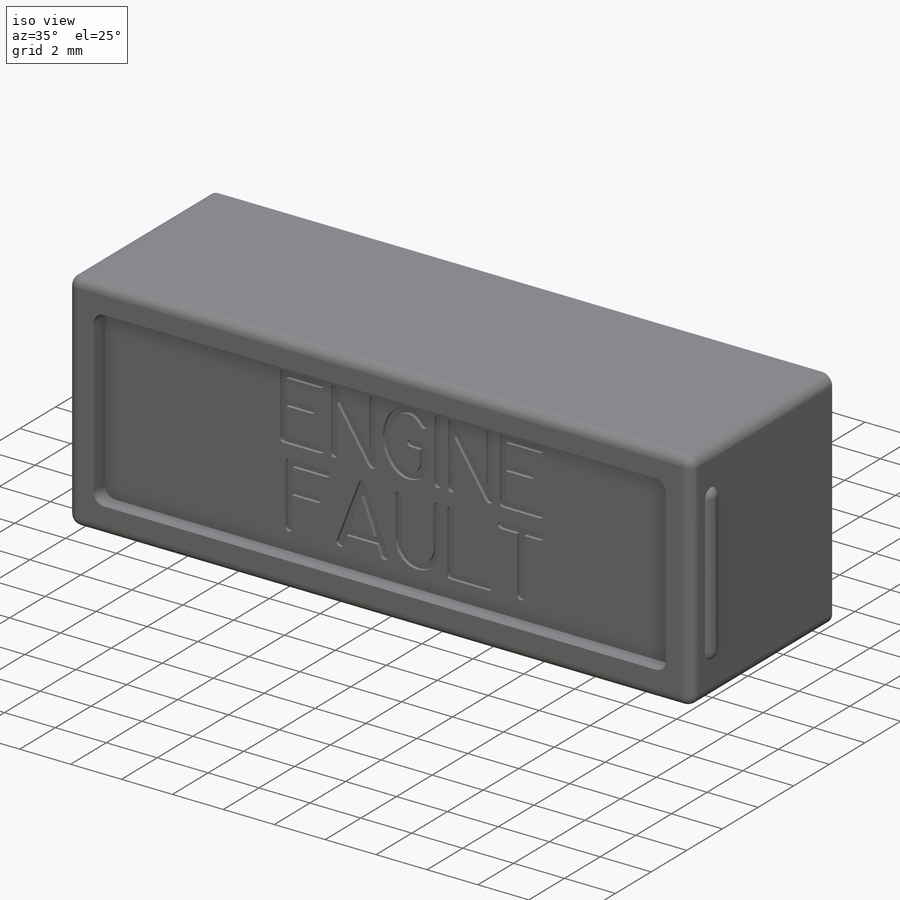
[diagram: iso view]
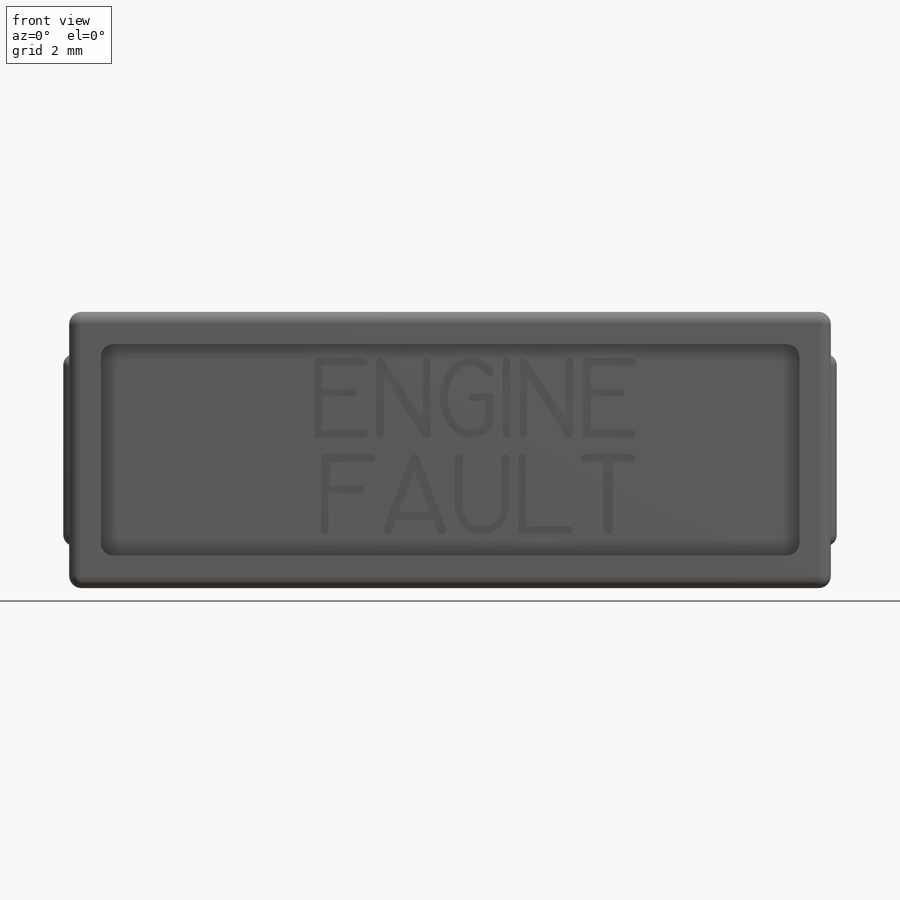
[diagram: front view]
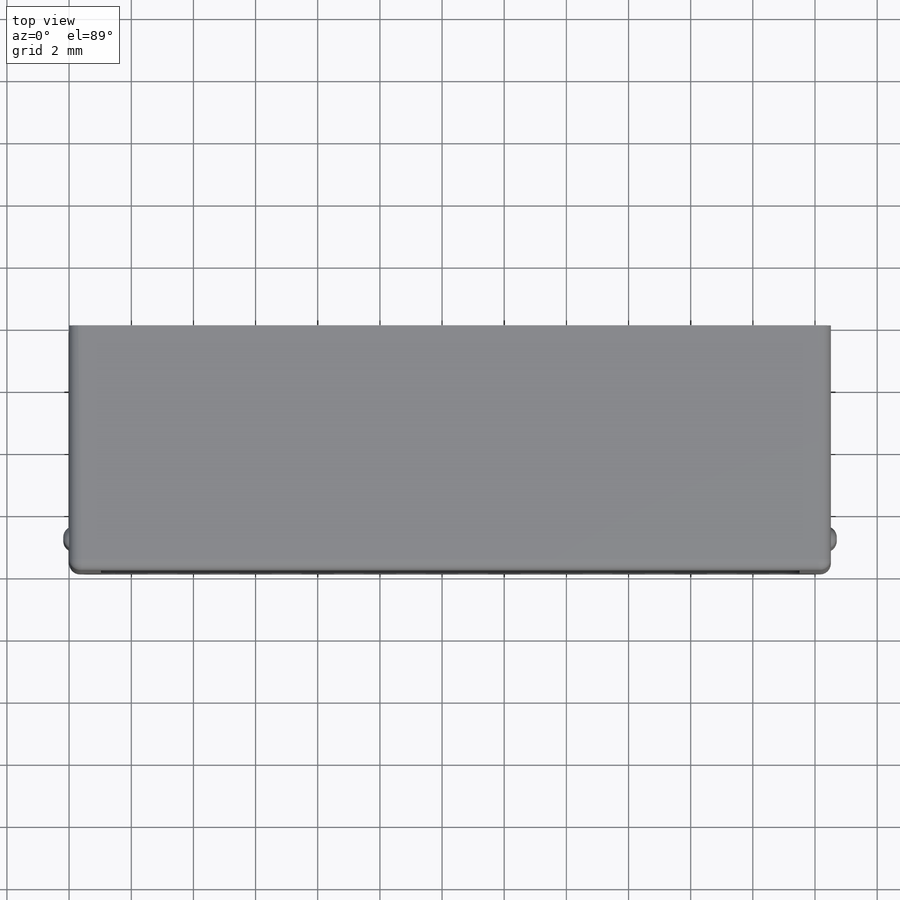
[diagram: top view]
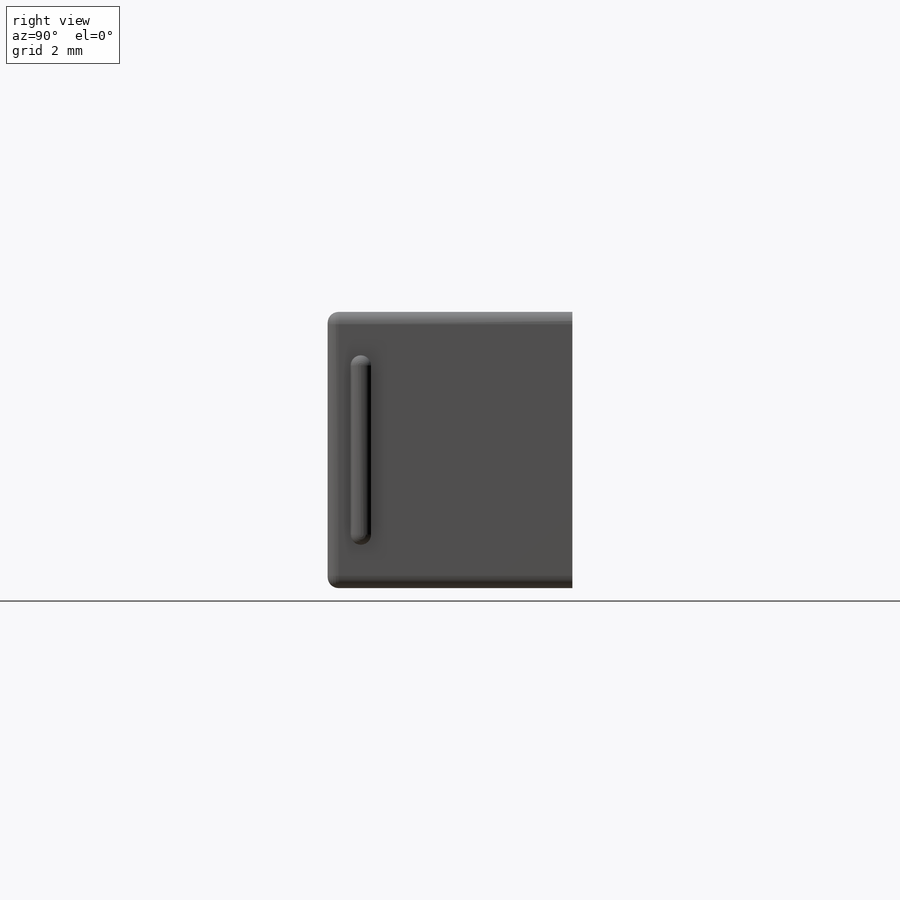
[diagram: right view]
SOLIDWORKS PART (.sldprt)
format: sldprt  version: not decoded by parser v0  size: 1,524,224 bytes
history: native  units: mm
features: sketch x7, extrude x3, fillet x3, material x1, cut_extrude x1 (+16 scaffold rows collapsed)
feature tree (31):
  scaffold x16  (default folders/planes/origin — collapsed)
  material  "Material <not specified>"
  sketch  "Sketch1"  dims[D1=24.511mm D2=8.89mm]
  extrude  "Extrude1"  Depth=7.874mm
  sketch  "Sketch2"  dims[D1=6.7945mm D2=22.479mm]
  cut_extrude  "Extrude2"  Depth=0.635mm
  fillet  "Fillet2"  Radius=0.396875mm
  fillet  "Fillet3"  Radius=0.352778mm
  sketch  "Sketch3"  dims[c1.D1=0.6604mm c1.D2=1.397mm c1.D3=1.397mm c1.D4=1.397mm c2.D1=0.6604mm c2.D3=1.7272mm c2.D4=1.7272mm]
  extrude  "Extrude3"  Depth=0.1905mm
  sketch  "Sketch4"  dims[D1=0.0mm]
  extrude  "Extrude4"  Depth=0.1905mm
  fillet  "Fillet6"  Radius=0.36576mm
  sketch  "Sketch5"  dims[D1=0.127mm]
  sketch  "Sketch7"  dims[D1=0.127mm]
  sketch  "Sketch8"  dims[D1=0.127mm]
decode coverage: 14 of 14 modeling features carry decoded parameters
note: suppression state not decoded; provenance and decode notes live in map.json
